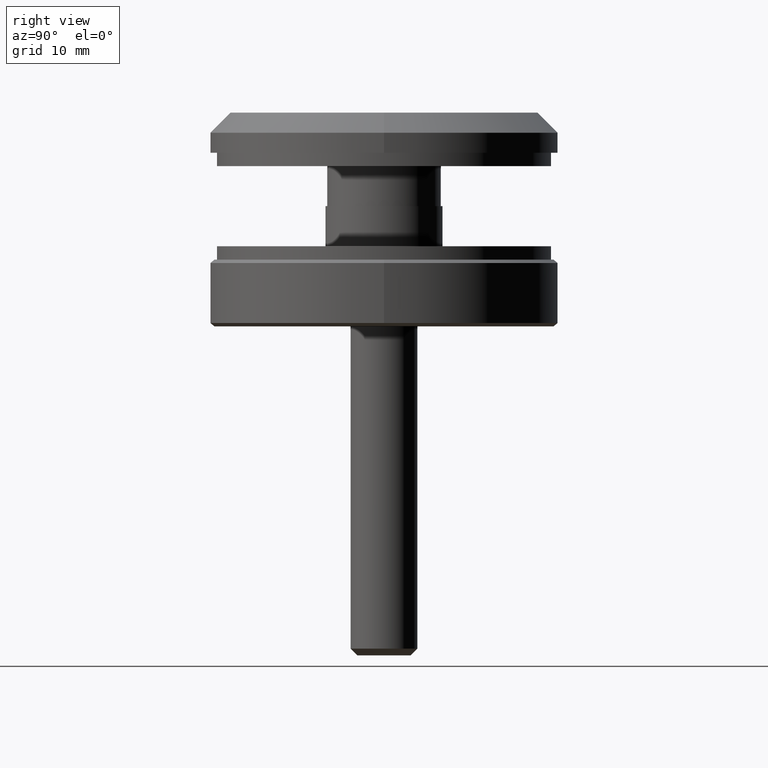
[diagram: clean part render]
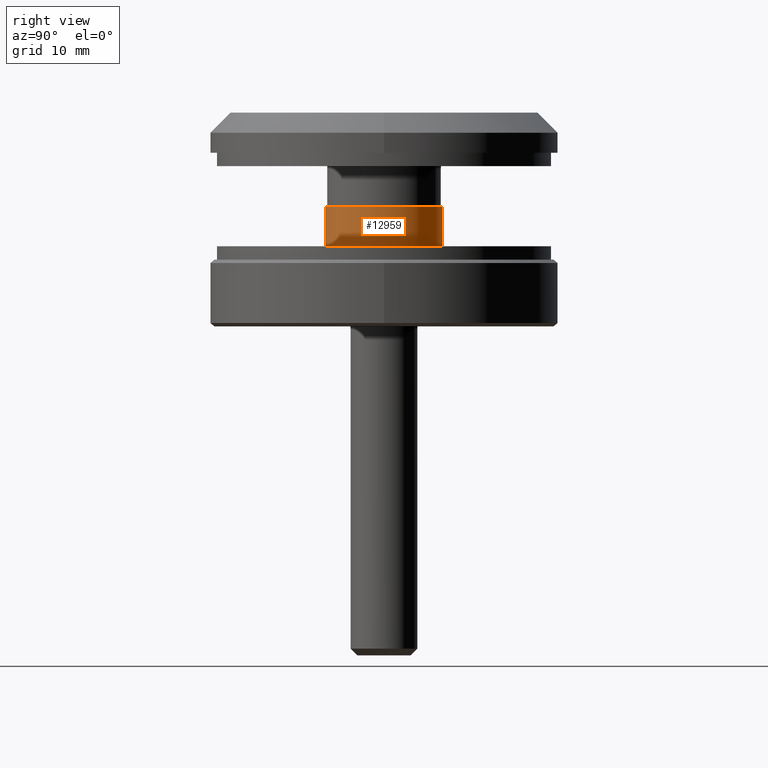
[diagram: same view with one face highlighted and labeled with its STEP entity id]
A machine part, right view. The second image highlights one B-rep face of the part: STEP entity #12959.
In plain terms, the highlighted cylindrical surface (bore or boss wall) has radius 8.75 mm, axis along (0, 0, -1).
Its self-contained STEP definition (entity closure, byte-faithful):
#97 = DIRECTION ( 'NONE',  ( 0.0000000000000000000, 1.000000000000000000, 0.0000000000000000000 ) ) ;
#1850 = EDGE_LOOP ( 'NONE', ( #14074 ) ) ;
#1887 = FACE_OUTER_BOUND ( 'NONE', #1850, .T. ) ;
#2342 = AXIS2_PLACEMENT_3D ( 'NONE', #14493, #97, #9302 ) ;
#3720 = EDGE_CURVE ( 'NONE', #13630, #13630, #9001, .T. ) ;
#3786 = DIRECTION ( 'NONE',  ( 0.0000000000000000000, 1.000000000000000000, 0.0000000000000000000 ) ) ;
#4739 = CIRCLE ( 'NONE', #2342, 8.750000000000001800 ) ;
#5102 = DIRECTION ( 'NONE',  ( 0.0000000000000000000, 0.0000000000000000000, 1.000000000000000000 ) ) ;
#6231 = EDGE_LOOP ( 'NONE', ( #9898 ) ) ;
#9001 = CIRCLE ( 'NONE', #11565, 8.750000000000001800 ) ;
#9012 = CARTESIAN_POINT ( 'NONE',  ( 0.0000000000000000000, 6.000000000000000000, 0.0000000000000000000 ) ) ;
#9302 = DIRECTION ( 'NONE',  ( 0.0000000000000000000, 0.0000000000000000000, 1.000000000000000000 ) ) ;
#9898 = ORIENTED_EDGE ( 'NONE', *, *, #10530, .T. ) ;
#10530 = EDGE_CURVE ( 'NONE', #14220, #14220, #4739, .T. ) ;
#10685 = DIRECTION ( 'NONE',  ( 0.0000000000000000000, 0.0000000000000000000, -1.000000000000000000 ) ) ;
#11565 = AXIS2_PLACEMENT_3D ( 'NONE', #9012, #3786, #5102 ) ;
#11948 = DIRECTION ( 'NONE',  ( -0.0000000000000000000, -1.000000000000000000, -0.0000000000000000000 ) ) ;
#12064 = CYLINDRICAL_SURFACE ( 'NONE', #15010, 8.750000000000001800 ) ;
#12845 = CARTESIAN_POINT ( 'NONE',  ( 0.0000000000000000000, 6.000000000000000000, 8.750000000000001800 ) ) ;
#12959 = ADVANCED_FACE ( 'NONE', ( #1887, #16330 ), #12064, .T. ) ;
#13254 = CARTESIAN_POINT ( 'NONE',  ( 0.0000000000000000000, 0.0000000000000000000, 8.750000000000001800 ) ) ;
#13630 = VERTEX_POINT ( 'NONE', #12845 ) ;
#14074 = ORIENTED_EDGE ( 'NONE', *, *, #3720, .F. ) ;
#14220 = VERTEX_POINT ( 'NONE', #13254 ) ;
#14493 = CARTESIAN_POINT ( 'NONE',  ( 0.0000000000000000000, 0.0000000000000000000, 0.0000000000000000000 ) ) ;
#14548 = CARTESIAN_POINT ( 'NONE',  ( 0.0000000000000000000, 6.000000000000000000, 0.0000000000000000000 ) ) ;
#15010 = AXIS2_PLACEMENT_3D ( 'NONE', #14548, #11948, #10685 ) ;
#16330 = FACE_OUTER_BOUND ( 'NONE', #6231, .T. ) ;